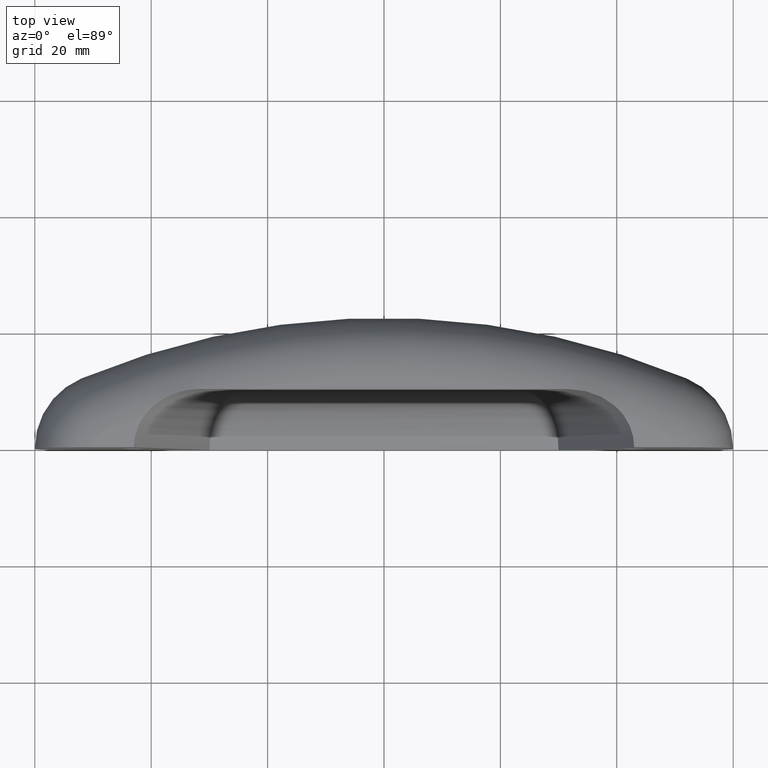
[diagram: clean part render]
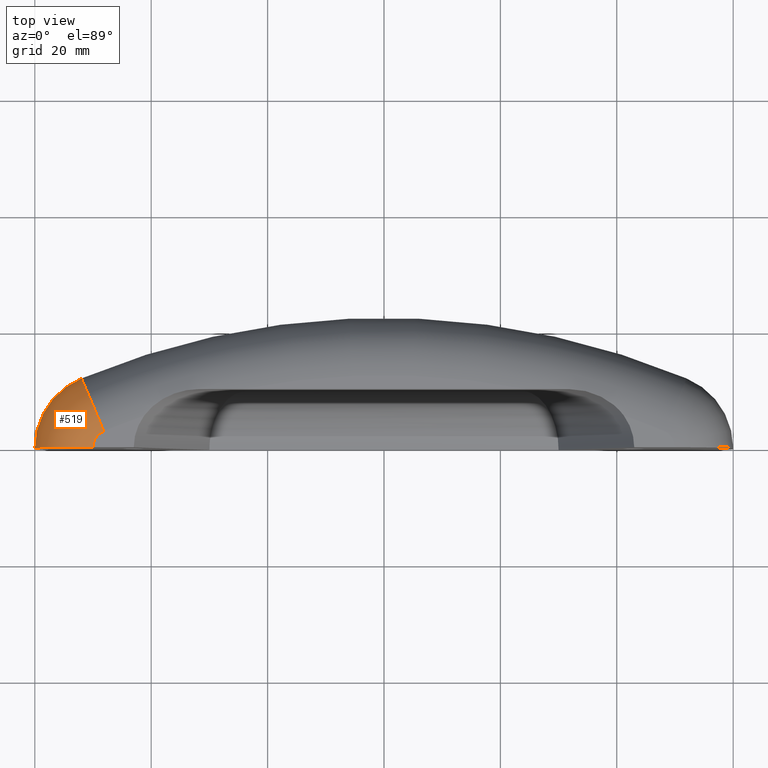
[diagram: same view with one face highlighted and labeled with its STEP entity id]
A machine part, top view. The second image highlights one B-rep face of the part: STEP entity #519.
In plain terms, the highlighted toroidal blend (fillet) surface has major radius 3 mm and minor (blend) radius 10 mm.
Its self-contained STEP definition (entity closure, byte-faithful):
#4 = EDGE_CURVE ( 'NONE', #357, #353, #642, .T. ) ;
#51 = FACE_OUTER_BOUND ( 'NONE', #611, .T. ) ;
#52 = TOROIDAL_SURFACE ( 'NONE', #77, 2.999999999999997300, 10.00000000000000000 ) ;
#77 = AXIS2_PLACEMENT_3D ( 'NONE', #282, #283, #284 ) ;
#87 = AXIS2_PLACEMENT_3D ( 'NONE', #179, #176, #175 ) ;
#98 = AXIS2_PLACEMENT_3D ( 'NONE', #248, #249, #250 ) ;
#101 = AXIS2_PLACEMENT_3D ( 'NONE', #258, #259, #260 ) ;
#128 = AXIS2_PLACEMENT_3D ( 'NONE', #733, #734, #729 ) ;
#154 = EDGE_CURVE ( 'NONE', #384, #365, #651, .T. ) ;
#175 = DIRECTION ( 'NONE',  ( -1.000000000000000000, -1.224646799147354200E-016, 0.0000000000000000000 ) ) ;
#176 = DIRECTION ( 'NONE',  ( 1.224646799147353500E-016, -1.000000000000000000, -0.0000000000000000000 ) ) ;
#179 = CARTESIAN_POINT ( 'NONE',  ( -110.0000000000000000, -1.347111479062088700E-014, 19.99999999999999600 ) ) ;
#248 = CARTESIAN_POINT ( 'NONE',  ( -107.0000000000000000, -1.310372075087668100E-014, 19.99999999999999600 ) ) ;
#249 = DIRECTION ( 'NONE',  ( -0.0000000000000000000, -0.0000000000000000000, -1.000000000000000000 ) ) ;
#250 = DIRECTION ( 'NONE',  ( -1.000000000000000000, 0.0000000000000000000, 0.0000000000000000000 ) ) ;
#258 = CARTESIAN_POINT ( 'NONE',  ( -107.0000000000000000, -1.310372075087668100E-014, 30.00000000000000000 ) ) ;
#259 = DIRECTION ( 'NONE',  ( 0.0000000000000000000, 0.0000000000000000000, 1.000000000000000000 ) ) ;
#260 = DIRECTION ( 'NONE',  ( -1.000000000000000000, -8.881784197001231600E-016, 0.0000000000000000000 ) ) ;
#282 = CARTESIAN_POINT ( 'NONE',  ( -107.0000000000000000, -1.310372075087668100E-014, 19.99999999999999600 ) ) ;
#283 = DIRECTION ( 'NONE',  ( -0.0000000000000000000, -0.0000000000000000000, -1.000000000000000000 ) ) ;
#284 = DIRECTION ( 'NONE',  ( -1.000000000000000000, 0.0000000000000000000, 0.0000000000000000000 ) ) ;
#353 = VERTEX_POINT ( 'NONE', #479 ) ;
#357 = VERTEX_POINT ( 'NONE', #483 ) ;
#365 = VERTEX_POINT ( 'NONE', #491 ) ;
#384 = VERTEX_POINT ( 'NONE', #510 ) ;
#479 = CARTESIAN_POINT ( 'NONE',  ( -120.0000000000000000, -1.469576158976824000E-014, 19.99999999999999600 ) ) ;
#483 = CARTESIAN_POINT ( 'NONE',  ( -110.0000000000000000, -1.347111479062088800E-014, 30.00000000000000000 ) ) ;
#491 = CARTESIAN_POINT ( 'NONE',  ( -108.1538461538461500, 2.769230769230757200, 30.00000000000000000 ) ) ;
#510 = CARTESIAN_POINT ( 'NONE',  ( -111.9999999999999900, 11.99999999999998800, 19.99999999999999600 ) ) ;
#519 = ADVANCED_FACE ( 'NONE', ( #51 ), #52, .T. ) ;
#588 = ORIENTED_EDGE ( 'NONE', *, *, #4, .F. ) ;
#589 = ORIENTED_EDGE ( 'NONE', *, *, #760, .F. ) ;
#590 = ORIENTED_EDGE ( 'NONE', *, *, #154, .F. ) ;
#591 = ORIENTED_EDGE ( 'NONE', *, *, #756, .F. ) ;
#611 = EDGE_LOOP ( 'NONE', ( #588, #589, #590, #591 ) ) ;
#642 = CIRCLE ( 'NONE', #87, 9.999999999999994700 ) ;
#651 = CIRCLE ( 'NONE', #128, 10.00000000000000000 ) ;
#711 = CIRCLE ( 'NONE', #98, 12.99999999999999800 ) ;
#716 = CIRCLE ( 'NONE', #101, 3.000000000000002700 ) ;
#729 = DIRECTION ( 'NONE',  ( -0.3846153846153846400, 0.9230769230769230200, 0.0000000000000000000 ) ) ;
#733 = CARTESIAN_POINT ( 'NONE',  ( -108.1538461538461500, 2.769230769230755000, 19.99999999999999600 ) ) ;
#734 = DIRECTION ( 'NONE',  ( 0.9230769230769230200, 0.3846153846153844700, -1.000802005371234300E-016 ) ) ;
#756 = EDGE_CURVE ( 'NONE', #353, #384, #711, .T. ) ;
#760 = EDGE_CURVE ( 'NONE', #365, #357, #716, .T. ) ;